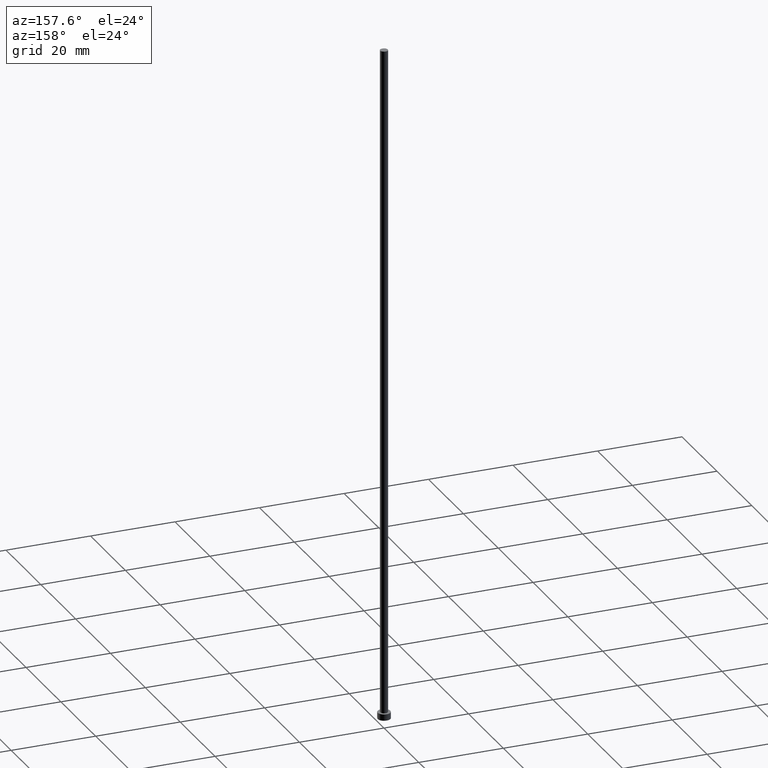
[diagram: clean part render]
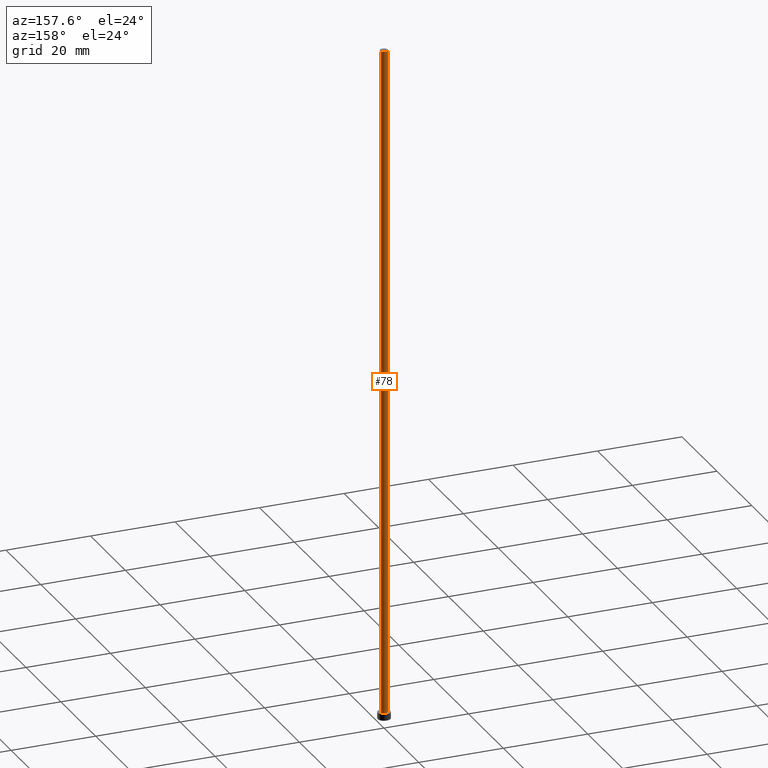
[diagram: same view with one face highlighted and labeled with its STEP entity id]
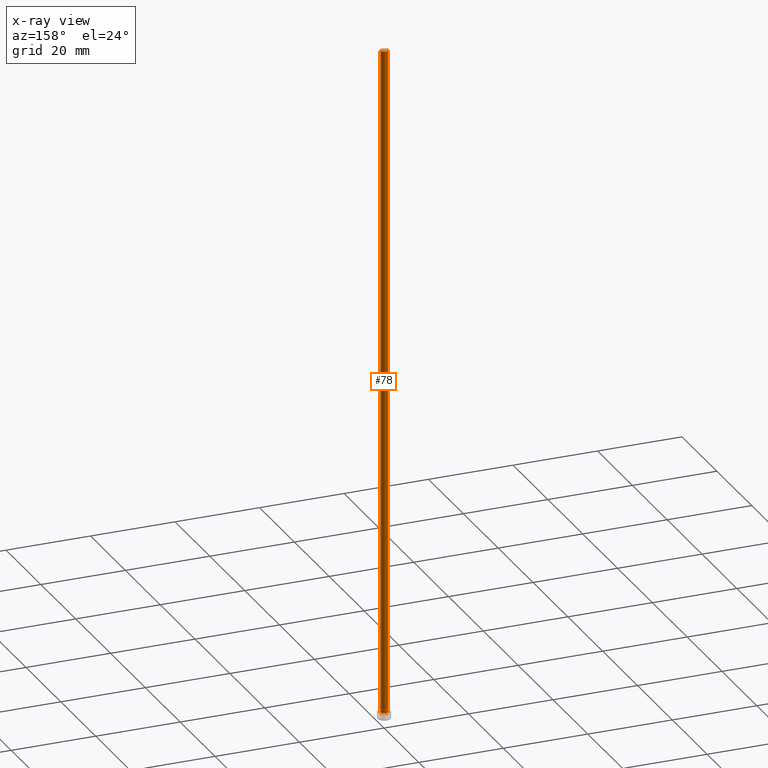
[diagram: x-ray of the same camera — body ghosted, the highlighted face saturated]
A machine part, auxiliary view. The second image highlights one B-rep face of the part: STEP entity #78.
The next image is the same camera in x-ray: the body ghosted, the highlighted face saturated — about 0% of this face is hidden behind the body in this view.
In plain terms, the highlighted cylindrical surface (edge-blend (fillet) strip) has radius 0.9 mm, axis along (-0, -0, -1).
Its self-contained STEP definition (entity closure, byte-faithful):
#4 = EDGE_CURVE ( 'NONE', #6, #226, #209, .T. ) ;
#6 = VERTEX_POINT ( 'NONE', #85 ) ;
#8 = CYLINDRICAL_SURFACE ( 'NONE', #42, 0.9000000000000000222 ) ;
#13 = DIRECTION ( 'NONE',  ( 1.000000000000000000, 0.000000000000000000, 0.000000000000000000 ) ) ;
#15 = DIRECTION ( 'NONE',  ( 0.000000000000000000, 0.000000000000000000, 1.000000000000000000 ) ) ;
#21 = DIRECTION ( 'NONE',  ( -0.000000000000000000, -0.000000000000000000, -1.000000000000000000 ) ) ;
#26 = DIRECTION ( 'NONE',  ( 0.000000000000000000, 0.000000000000000000, 1.000000000000000000 ) ) ;
#31 = CARTESIAN_POINT ( 'NONE',  ( 0.9000000000000000222, 1.102182119232617788E-16, 1.500000000000000000 ) ) ;
#35 = CARTESIAN_POINT ( 'NONE',  ( -0.9000000000000000222, 0.000000000000000000, 160.0000000000000000 ) ) ;
#42 = AXIS2_PLACEMENT_3D ( 'NONE', #119, #140, #197 ) ;
#43 = ORIENTED_EDGE ( 'NONE', *, *, #4, .T. ) ;
#56 = CIRCLE ( 'NONE', #214, 0.9000000000000000222 ) ;
#64 = EDGE_LOOP ( 'NONE', ( #161, #43, #77, #137 ) ) ;
#77 = ORIENTED_EDGE ( 'NONE', *, *, #120, .T. ) ;
#78 = ADVANCED_FACE ( 'NONE', ( #184 ), #8, .T. ) ;
#85 = CARTESIAN_POINT ( 'NONE',  ( 0.9000000000000000222, 1.102182119232617788E-16, 160.0000000000000000 ) ) ;
#87 = VECTOR ( 'NONE', #221, 1000.000000000000000 ) ;
#101 = CIRCLE ( 'NONE', #223, 0.9000000000000000222 ) ;
#109 = VECTOR ( 'NONE', #21, 1000.000000000000000 ) ;
#119 = CARTESIAN_POINT ( 'NONE',  ( 0.000000000000000000, 0.000000000000000000, 160.0000000000000000 ) ) ;
#120 = EDGE_CURVE ( 'NONE', #226, #128, #101, .T. ) ;
#128 = VERTEX_POINT ( 'NONE', #145 ) ;
#135 = CARTESIAN_POINT ( 'NONE',  ( -0.9000000000000000222, 0.000000000000000000, 160.0000000000000000 ) ) ;
#137 = ORIENTED_EDGE ( 'NONE', *, *, #251, .F. ) ;
#140 = DIRECTION ( 'NONE',  ( -0.000000000000000000, -0.000000000000000000, -1.000000000000000000 ) ) ;
#145 = CARTESIAN_POINT ( 'NONE',  ( -0.9000000000000000222, 0.000000000000000000, 1.500000000000000000 ) ) ;
#147 = CARTESIAN_POINT ( 'NONE',  ( 0.000000000000000000, 0.000000000000000000, 160.0000000000000000 ) ) ;
#154 = CARTESIAN_POINT ( 'NONE',  ( 0.9000000000000000222, 1.102182119232617788E-16, 160.0000000000000000 ) ) ;
#161 = ORIENTED_EDGE ( 'NONE', *, *, #236, .F. ) ;
#173 = DIRECTION ( 'NONE',  ( 1.000000000000000000, 0.000000000000000000, 0.000000000000000000 ) ) ;
#184 = FACE_OUTER_BOUND ( 'NONE', #64, .T. ) ;
#185 = CARTESIAN_POINT ( 'NONE',  ( 0.000000000000000000, 0.000000000000000000, 1.500000000000000000 ) ) ;
#197 = DIRECTION ( 'NONE',  ( -1.000000000000000000, 0.000000000000000000, 0.000000000000000000 ) ) ;
#209 = LINE ( 'NONE', #154, #87 ) ;
#211 = LINE ( 'NONE', #35, #109 ) ;
#214 = AXIS2_PLACEMENT_3D ( 'NONE', #147, #15, #173 ) ;
#221 = DIRECTION ( 'NONE',  ( -0.000000000000000000, -0.000000000000000000, -1.000000000000000000 ) ) ;
#223 = AXIS2_PLACEMENT_3D ( 'NONE', #185, #26, #13 ) ;
#226 = VERTEX_POINT ( 'NONE', #31 ) ;
#236 = EDGE_CURVE ( 'NONE', #6, #248, #56, .T. ) ;
#248 = VERTEX_POINT ( 'NONE', #135 ) ;
#251 = EDGE_CURVE ( 'NONE', #248, #128, #211, .T. ) ;